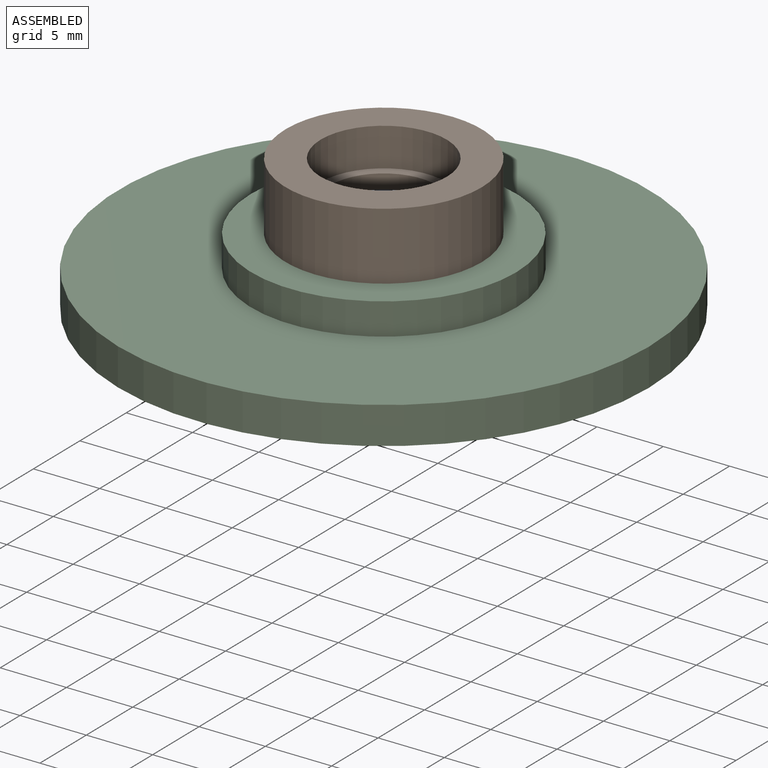
[diagram: assembled view]
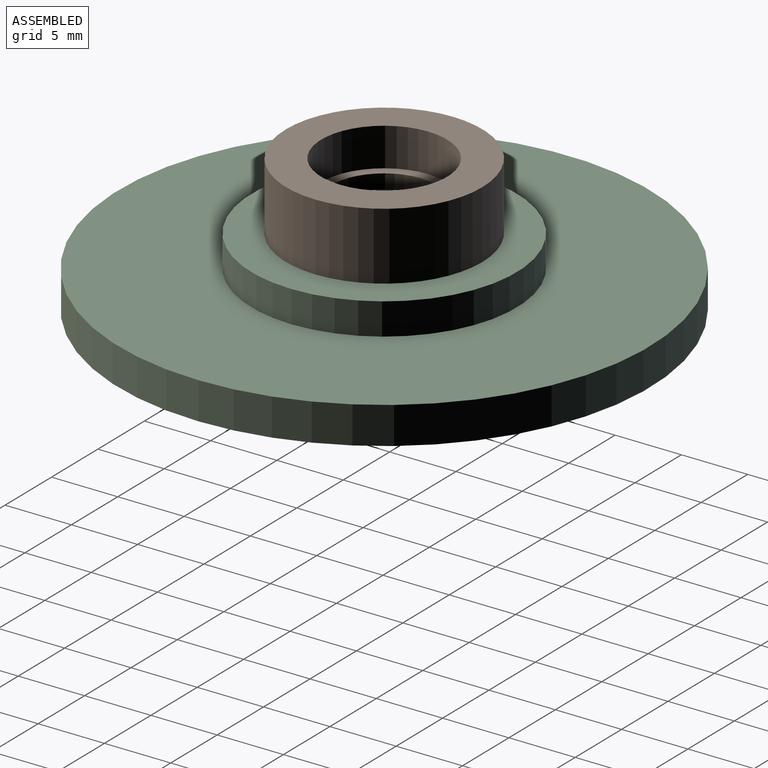
[diagram: assembled view, second angle]
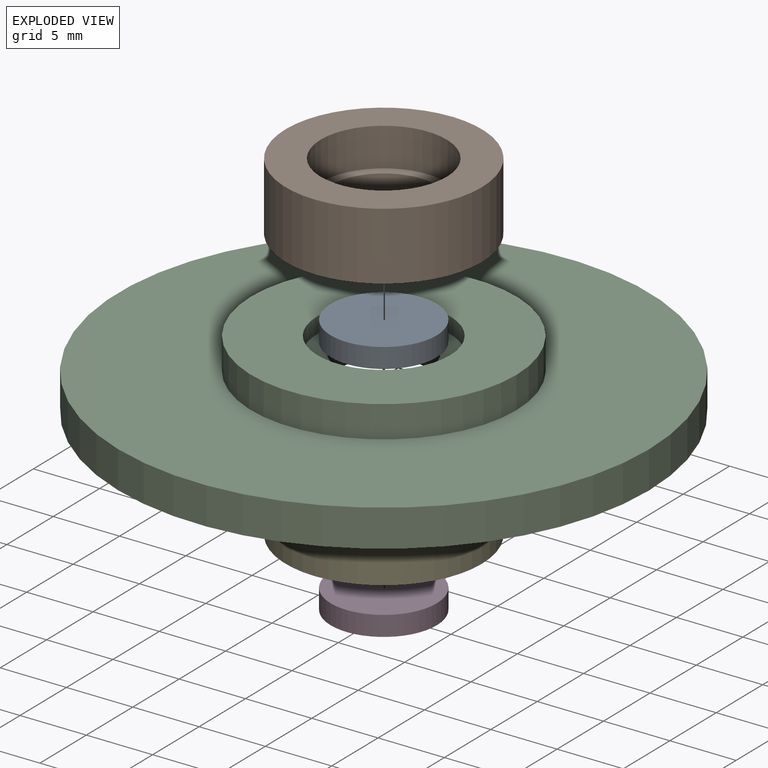
[diagram: exploded view]
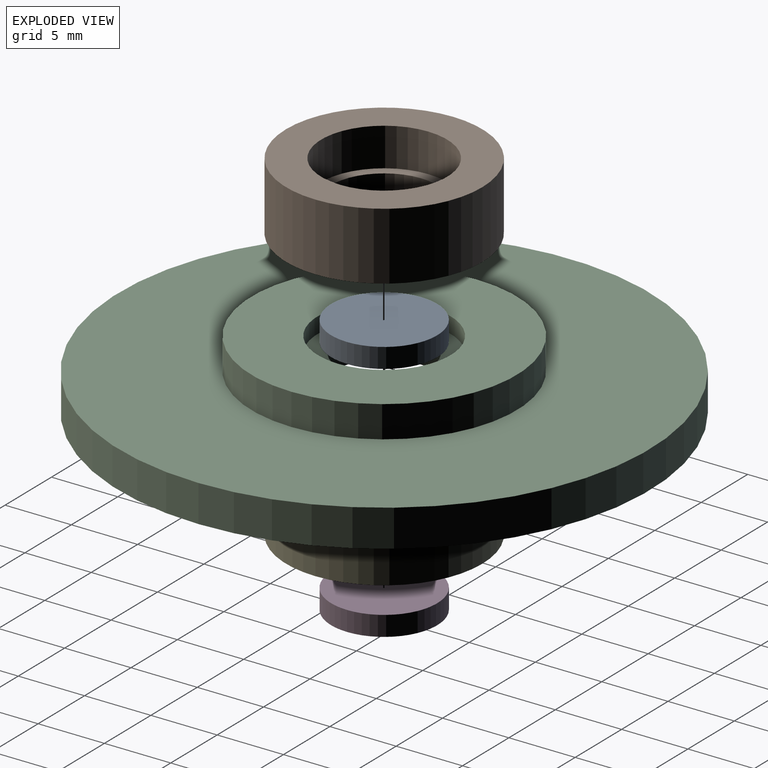
[diagram: exploded view, second angle]
ASSEMBLY  parts=5 mates=8
PART A: 3 faces, bbox 8x8x1.5 mm
  f0: cylinder r=4mm len=8mm, axis (0,0,-1), area 37.7mm2, adj f1,f2
  f1: plane 8x8mm, normal (0,0,1), area 50.3mm2, adj f0
  f2: plane 8x8mm, normal (0,0,-1), area 50.3mm2, adj f0
PART B: 11 faces, bbox 14.8x14.8x6.2 mm
  f0: cylinder r=4.75mm len=9.5mm, axis (0,0,-1), area 86.6mm2, adj f1,f9
  f1: plane 14.8x14.8mm, normal (0,0,1), area 101.2mm2, adj f0,f2
  f2: cylinder r=7.4mm len=14.8mm, axis (0,0,-1), area 237.1mm2, adj f1,f3
  f3: plane 14.8x14.8mm, normal (0,0,-1), area 93.5mm2, adj f2,f4
  f4: cylinder r=5mm len=10mm, axis (0,0,-1), area 15.7mm2, adj f3,f10
  f5: plane 8.8x8.8mm, normal (0,0,-1), area 24.5mm2, adj f6,f10
  f6: cylinder r=3.4mm len=6.8mm, axis (0,0,-1), area 15mm2, adj f5,f7
  f7: plane 8x8mm, normal (0,0,1), area 13.9mm2, adj f6,f8
  f8: cylinder r=4mm len=8mm, axis (0,0,-1), area 65.3mm2, adj f7,f9
  f9: plane 9.5x9.5mm, normal (0,0,1), area 20.6mm2, adj f0,f8
  f10: cone r=4.4mm half-angle=45deg, axis (0,0,1), area 25.1mm2, adj f4,f5
PART C: 10 faces, bbox 40x40x5.2 mm
  f0: cylinder r=20mm len=40mm, axis (0,0,-1), area 351.9mm2, adj f5,f9
  f1: plane 20x20mm, normal (0,0,1), area 235.6mm2, adj f2,f8
  f2: cylinder r=5mm len=10mm, axis (0,0,-1), area 37.7mm2, adj f1,f7
  f3: plane 15x15mm, normal (0,0,-1), area 138.2mm2, adj f4,f6
  f4: cylinder r=7.5mm len=15mm, axis (0,0,1), area 94.2mm2, adj f3,f5
  f5: plane 40x40mm, normal (0,0,-1), area 1079.9mm2, adj f0,f4
  f6: cylinder r=3.5mm len=7mm, axis (0,0,-1), area 44mm2, adj f3,f7
  f7: plane 10x10mm, normal (0,0,1), area 40.1mm2, adj f2,f6
  f8: cylinder r=10mm len=20mm, axis (0,0,1), area 150.8mm2, adj f1,f9
  f9: plane 40x40mm, normal (0,0,1), area 942.5mm2, adj f0,f8
PART D: same geometry as A
PART E: same geometry as B
PLACE A t=(25.61,4.02,31.89)mm
PLACE B t=(25.61,4.02,31.19)mm
PLACE C t=(25.61,4.02,29.09)mm
PLACE D t=(25.61,4.02,23.59)mm
PLACE E t=(25.61,4.02,22.89)mm
MATE slider D.f0 <-> E.f0  axis (0,0,-1) through (25.61,4.02,24.34)mm
MATE slider E.f0 <-> C.f4  axis (0,0,-1) through (25.61,4.02,26.54)mm
MATE planar B.f0 <-> A.f0  axis (0,0,1) through (25.61,4.02,31.89)mm
MATE planar E.f0 <-> C.f4  axis (0,0,1) through (25.61,4.02,29.09)mm
MATE slider A.f0 <-> B.f0  axis (0,0,-1) through (25.61,4.02,32.64)mm
MATE slider B.f0 <-> C.f2  axis (0,0,-1) through (25.61,4.02,32.04)mm
MATE planar E.f0 <-> D.f0  axis (0,0,1) through (25.61,4.02,23.59)mm
MATE planar B.f0 <-> C.f8  axis (0,0,-1) through (25.61,4.02,32.29)mm
